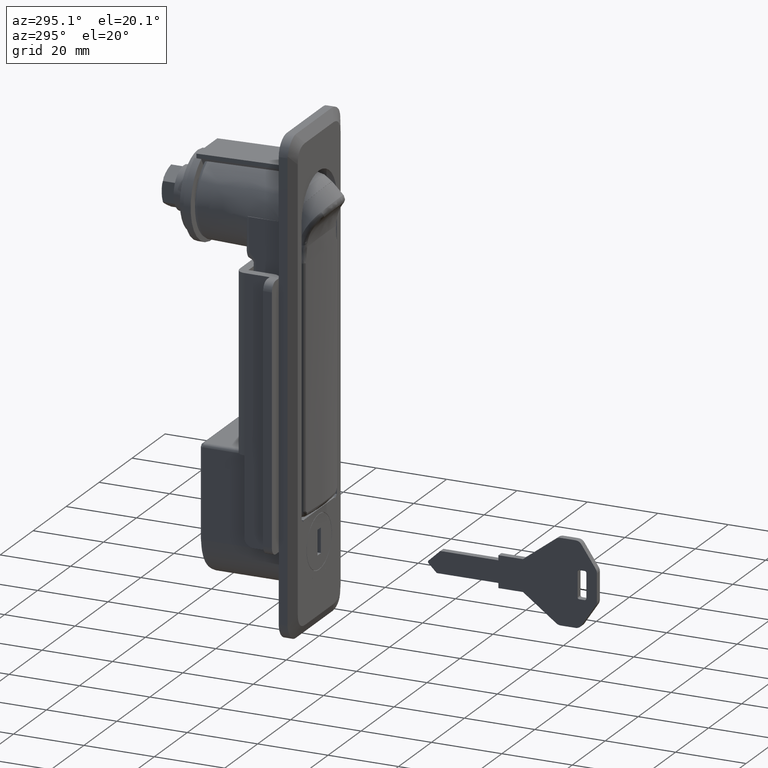
[diagram: clean part render]
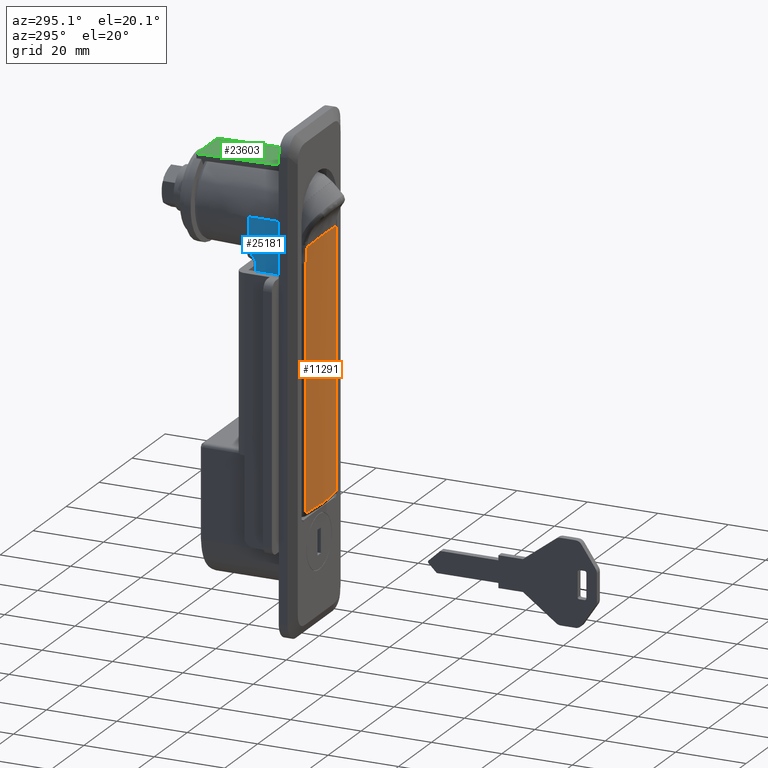
[diagram: same view with three faces highlighted in distinct colors, each labeled with its STEP entity id]
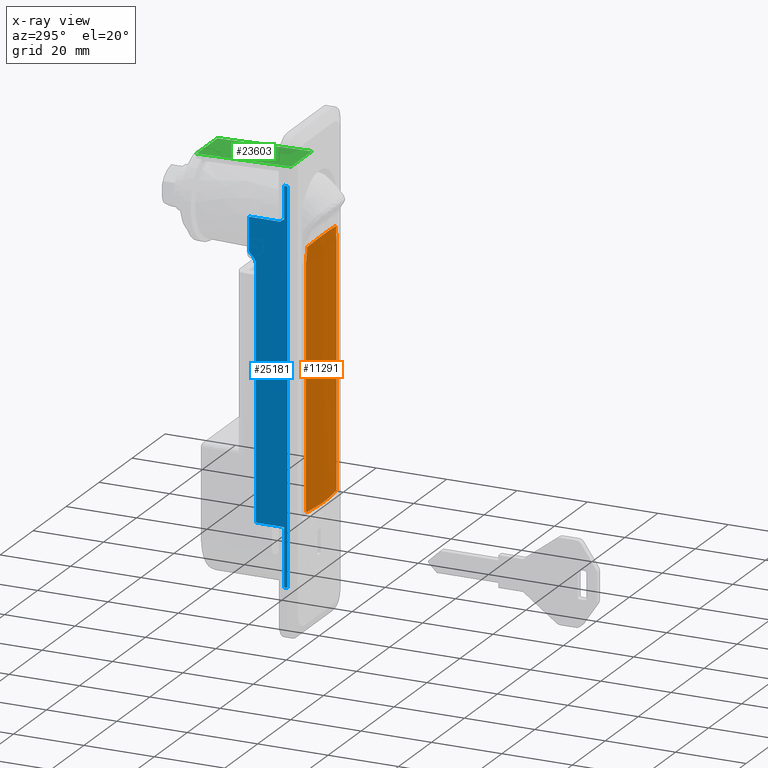
[diagram: x-ray of the same camera — body ghosted, the three highlighted faces saturated]
A machine part, auxiliary view with three faces highlighted in distinct colors.
The next image is the same camera in x-ray (body ghosted, the three faces saturated) — at least one of them is partly hidden behind the body in this view.
Their STEP definitions:

[orange] entity #11291 — the highlighted face is a freeform B-spline surface patch.
#8309=CARTESIAN_POINT('',(-0.593287196272527,9.230769230769191,-79.499797333296385));
#8310=VERTEX_POINT('',#8309);
#8337=CARTESIAN_POINT('',(-0.670864539819239,8.717948717948669,-79.999797333296385));
#8338=VERTEX_POINT('',#8337);
#8349=CARTESIAN_POINT('',(-0.593287196272520,9.230769230769191,-79.499797333296385));
#8350=CARTESIAN_POINT('',(-0.593287196272520,9.230769230769189,-79.533443926202096));
#8351=CARTESIAN_POINT('',(-0.593824289165084,9.227321544824644,-79.566479465484122));
#8352=CARTESIAN_POINT('',(-0.595395049034603,9.217221747952639,-79.615159379093669));
#8353=CARTESIAN_POINT('',(-0.596047100512712,9.213027370892773,-79.631239318154869));
#8354=CARTESIAN_POINT('',(-0.597612461997759,9.202948178609187,-79.663099646056651));
#8355=CARTESIAN_POINT('',(-0.598528233251857,9.197047397824948,-79.678884863008406));
#8356=CARTESIAN_POINT('',(-0.601600149239426,9.177228991317932,-79.724686185330214));
#8357=CARTESIAN_POINT('',(-0.604094566932641,9.161108413612308,-79.753548243355041));
#8358=CARTESIAN_POINT('',(-0.609943642256976,9.123169066111039,-79.807997393731895));
#8359=CARTESIAN_POINT('',(-0.613314971917447,9.101239427799726,-79.833567112454332));
#8360=CARTESIAN_POINT('',(-0.620605796429309,9.053603195493432,-79.879216782380539));
#8361=CARTESIAN_POINT('',(-0.624556211541727,9.027697151018447,-79.899625018430939));
#8362=CARTESIAN_POINT('',(-0.633058290788265,8.971655845646254,-79.935549394884376));
#8363=CARTESIAN_POINT('',(-0.637508954684916,8.942184459536303,-79.950612235691523));
#8364=CARTESIAN_POINT('',(-0.646677806205394,8.881137571213294,-79.974894555783010));
#8365=CARTESIAN_POINT('',(-0.651447635714418,8.849216784739275,-79.984220410915398));
#8366=CARTESIAN_POINT('',(-0.661120003370704,8.784107985001834,-79.996672866951599));
#8367=CARTESIAN_POINT('',(-0.665980695385446,8.751204357139343,-79.999797333296357));
#8368=CARTESIAN_POINT('',(-0.670864539819236,8.717948717948669,-79.999797333296385));
#8369=B_SPLINE_CURVE_WITH_KNOTS('',3,(#8349,#8350,#8351,#8352,#8353,#8354,#8355,#8356,#8357,#8358,#8359,#8360,#8361,#8362,#8363,#8364,#8365,#8366,#8367,#8368),.UNSPECIFIED.,.F.,.U.,(4,2,2,2,2,2,2,2,2,4),(0.0,0.125000000000043,0.187500000000039,0.250000000000035,0.375000000000029,0.500000000000023,0.625000000000017,0.750000000000012,0.875000000000006,1.0),.UNSPECIFIED.);
#8370=EDGE_CURVE('',#8310,#8338,#8369,.T.);
#8394=CARTESIAN_POINT('',(-0.670864539819239,-8.717948717948669,-79.999797333296385));
#8395=VERTEX_POINT('',#8394);
#8407=CARTESIAN_POINT('',(-0.670864539819239,8.717948717948669,-79.999797333296385));
#8408=CARTESIAN_POINT('',(-1.108012554850585,5.742442924498828,-79.999797333296414));
#8409=CARTESIAN_POINT('',(-1.520450271841517,-0.092103118159534,-79.999797333296300));
#8410=CARTESIAN_POINT('',(-1.081498204934079,-5.922767603829385,-79.999797333296314));
#8411=CARTESIAN_POINT('',(-0.670864539819239,-8.717948717948669,-79.999797333296385));
#8412=B_SPLINE_CURVE_WITH_KNOTS('',3,(#8407,#8408,#8409,#8410,#8411),.UNSPECIFIED.,.F.,.U.,(4,1,4),(2.317304E-009,9.022320941125066,17.497853507731492),.UNSPECIFIED.);
#8413=EDGE_CURVE('',#8338,#8395,#8412,.T.);
#8441=CARTESIAN_POINT('',(-0.593287196272527,9.230769230769191,-11.621982736734919));
#8442=VERTEX_POINT('',#8441);
#8462=CARTESIAN_POINT('',(-0.593287196272527,9.230769230769191,-11.621982736734919));
#8463=CARTESIAN_POINT('',(-0.593287196272527,9.230769230769191,-79.499797333296385));
#8464=QUASI_UNIFORM_CURVE('',1,(#8462,#8463),.UNSPECIFIED.,.F.,.U.);
#8465=EDGE_CURVE('',#8442,#8310,#8464,.T.);
#8570=CARTESIAN_POINT('',(-0.593287196272524,-9.230769230769180,-79.499797333296385));
#8571=VERTEX_POINT('',#8570);
#8583=CARTESIAN_POINT('',(-0.670864539819239,-8.717948717948669,-79.999797333296385));
#8584=CARTESIAN_POINT('',(-0.665980144494525,-8.751208108329632,-79.999797333296414));
#8585=CARTESIAN_POINT('',(-0.661143082661120,-8.783950872228644,-79.996672440863293));
#8586=CARTESIAN_POINT('',(-0.651563149818038,-8.848440941503393,-79.984398832801773));
#8587=CARTESIAN_POINT('',(-0.646775480897858,-8.880485732467736,-79.975122260247645));
#8588=CARTESIAN_POINT('',(-0.637539241158125,-8.941984302598456,-79.950722990857386));
#8589=CARTESIAN_POINT('',(-0.633119812092454,-8.971248250747573,-79.935751181536816));
#8590=CARTESIAN_POINT('',(-0.624692084304021,-9.026803578297207,-79.900255946330816));
#8591=CARTESIAN_POINT('',(-0.620653968313786,-9.053287741934458,-79.879486027101748));
#8592=CARTESIAN_POINT('',(-0.613347313188240,-9.101028822854357,-79.833801625797349));
#8593=CARTESIAN_POINT('',(-0.610040742130485,-9.122538080131307,-79.808792533000045));
#8594=CARTESIAN_POINT('',(-0.605632074616259,-9.151136104060617,-79.767913051666923));
#8595=CARTESIAN_POINT('',(-0.604250199207733,-9.160084586490267,-79.753651234919403));
#8596=CARTESIAN_POINT('',(-0.601737734801617,-9.176333950626267,-79.724589253275965));
#8597=CARTESIAN_POINT('',(-0.600599785083706,-9.183682690760108,-79.709733557983370));
#8598=CARTESIAN_POINT('',(-0.597538712134586,-9.203431530072750,-79.664204935959518));
#8599=CARTESIAN_POINT('',(-0.595962080415191,-9.213575696093361,-79.632497429178656));
#8600=CARTESIAN_POINT('',(-0.593824544872079,-9.227320006807236,-79.566717616400510));
#8601=CARTESIAN_POINT('',(-0.593287196272525,-9.230769230769182,-79.533448534454294));
#8602=CARTESIAN_POINT('',(-0.593287196272525,-9.230769230769180,-79.499797333296385));
#8603=B_SPLINE_CURVE_WITH_KNOTS('',3,(#8583,#8584,#8585,#8586,#8587,#8588,#8589,#8590,#8591,#8592,#8593,#8594,#8595,#8596,#8597,#8598,#8599,#8600,#8601,#8602),.UNSPECIFIED.,.F.,.U.,(4,2,2,2,2,2,2,2,2,4),(0.0,0.124999999999986,0.249999999999971,0.374999999999956,0.499999999999942,0.624999999999928,0.687499999999940,0.749999999999952,0.874999999999976,1.0),.UNSPECIFIED.);
#8604=EDGE_CURVE('',#8395,#8571,#8603,.T.);
#8641=CARTESIAN_POINT('',(-0.593880876059456,9.226955446356101,-11.561117204549660));
#8642=VERTEX_POINT('',#8641);
#8663=CARTESIAN_POINT('',(-0.593880876059456,9.226955446356101,-11.561117204549660));
#8664=CARTESIAN_POINT('',(-0.593287426954586,9.230768286728790,-11.591427652377190));
#8665=CARTESIAN_POINT('',(-0.593287196272527,9.230769230769191,-11.621982736734919));
#8666=B_SPLINE_CURVE_WITH_KNOTS('',2,(#8663,#8664,#8665),.UNSPECIFIED.,.F.,.U.,(3,3),(1.276756E-015,0.061048978907316),.UNSPECIFIED.);
#8667=EDGE_CURVE('',#8642,#8442,#8666,.T.);
#8688=CARTESIAN_POINT('',(-0.593287196272527,-9.230769230769170,-11.621982736734340));
#8689=VERTEX_POINT('',#8688);
#8701=CARTESIAN_POINT('',(-0.593287196272524,-9.230769230769180,-79.499797333296385));
#8702=CARTESIAN_POINT('',(-0.593287196272527,-9.230769230769170,-11.621982736734340));
#8703=QUASI_UNIFORM_CURVE('',1,(#8701,#8702),.UNSPECIFIED.,.F.,.U.);
#8704=EDGE_CURVE('',#8571,#8689,#8703,.T.);
#8735=CARTESIAN_POINT('',(-0.673580437330200,8.699435233337031,-7.367387496955450));
#8736=VERTEX_POINT('',#8735);
#8763=CARTESIAN_POINT('',(-0.673580437330200,8.699435233337031,-7.367387496955450));
#8764=CARTESIAN_POINT('',(-0.634903316888660,8.963372509366565,-9.465660829633563));
#8765=CARTESIAN_POINT('',(-0.593880876059456,9.226955446356101,-11.561117204549660));
#8773=(BOUNDED_CURVE()B_SPLINE_CURVE(2,(#8763,#8764,#8765),.UNSPECIFIED.,.F.,.U.)CURVE()GEOMETRIC_REPRESENTATION_ITEM()QUASI_UNIFORM_CURVE()RATIONAL_B_SPLINE_CURVE((1.0,0.999990116983471,1.0))REPRESENTATION_ITEM(''));
#8774=EDGE_CURVE('',#8736,#8642,#8773,.T.);
#8801=CARTESIAN_POINT('',(-0.593880876059459,-9.226955446356081,-11.561117204549101));
#8802=VERTEX_POINT('',#8801);
#8813=CARTESIAN_POINT('',(-0.593287196272527,-9.230769230769170,-11.621982736734340));
#8814=CARTESIAN_POINT('',(-0.593287328174034,-9.230768652364905,-11.591427628502650));
#8815=CARTESIAN_POINT('',(-0.593880876059459,-9.226955446356081,-11.561117204549101));
#8816=B_SPLINE_CURVE_WITH_KNOTS('',2,(#8813,#8814,#8815),.UNSPECIFIED.,.F.,.U.,(3,3),(8.014422E-016,0.061049002771564),.UNSPECIFIED.);
#8817=EDGE_CURVE('',#8689,#8802,#8816,.T.);
#8909=CARTESIAN_POINT('',(-0.673580437330186,-8.699435233337180,-7.367387496955471));
#8910=VERTEX_POINT('',#8909);
#8921=CARTESIAN_POINT('',(-0.593880876059431,-9.226955446356083,-11.561117204549079));
#8922=CARTESIAN_POINT('',(-0.634903316888584,-8.963372509367099,-9.465660829636901));
#8923=CARTESIAN_POINT('',(-0.673580437330186,-8.699435233337180,-7.367387496955471));
#8931=(BOUNDED_CURVE()B_SPLINE_CURVE(2,(#8921,#8922,#8923),.UNSPECIFIED.,.F.,.U.)CURVE()GEOMETRIC_REPRESENTATION_ITEM()QUASI_UNIFORM_CURVE()RATIONAL_B_SPLINE_CURVE((1.0,0.999990116966999,1.0))REPRESENTATION_ITEM(''));
#8932=EDGE_CURVE('',#8802,#8910,#8931,.T.);
#9477=CARTESIAN_POINT('',(-0.673580437330193,-8.699435233337191,-7.367387496955452));
#9478=CARTESIAN_POINT('',(-1.948387502684834,-6.245005E-014,-5.880112587375044));
#9479=CARTESIAN_POINT('',(-0.673580437330200,8.699435233337031,-7.367387496955450));
#9487=(BOUNDED_CURVE()B_SPLINE_CURVE(2,(#9477,#9478,#9479),.UNSPECIFIED.,.F.,.U.)CURVE()GEOMETRIC_REPRESENTATION_ITEM()QUASI_UNIFORM_CURVE()RATIONAL_B_SPLINE_CURVE((1.0,0.989433034427772,1.0))REPRESENTATION_ITEM(''));
#9488=EDGE_CURVE('',#8910,#8736,#9487,.T.);
#11265=CARTESIAN_POINT('',(-0.444814401992882,10.138524556474284,-4.793397471239135));
#11266=CARTESIAN_POINT('',(-0.444814401992882,10.138524556474284,-81.879957329847798));
#11267=CARTESIAN_POINT('',(-2.183276657161329,-0.001788994260023,-4.793397471239135));
#11268=CARTESIAN_POINT('',(-2.183276657161329,-0.001788994260023,-81.879957329847812));
#11269=CARTESIAN_POINT('',(-0.444218404647681,-10.142000348774060,-4.793397471239135));
#11270=CARTESIAN_POINT('',(-0.444218404647681,-10.142000348774060,-81.879957329847812));
#11278=(BOUNDED_SURFACE()B_SPLINE_SURFACE(1,2,((#11265,#11267,#11269),(#11266,#11268,#11270)),.UNSPECIFIED.,.F.,.F.,.U.)B_SPLINE_SURFACE_WITH_KNOTS((2,2),(3,3),(0.0,77.086559858608680),(0.0,20.427425612610890),.UNSPECIFIED.)GEOMETRIC_REPRESENTATION_ITEM()RATIONAL_B_SPLINE_SURFACE(((0.998375636264553,0.982045415023698,0.994384386478732),(0.998375636264553,0.982045415023698,0.994384386478732)))REPRESENTATION_ITEM('')SURFACE());
#11279=ORIENTED_EDGE('',*,*,#8817,.T.);
#11280=ORIENTED_EDGE('',*,*,#8932,.T.);
#11281=ORIENTED_EDGE('',*,*,#9488,.T.);
#11282=ORIENTED_EDGE('',*,*,#8774,.T.);
#11283=ORIENTED_EDGE('',*,*,#8667,.T.);
#11284=ORIENTED_EDGE('',*,*,#8465,.T.);
#11285=ORIENTED_EDGE('',*,*,#8370,.T.);
#11286=ORIENTED_EDGE('',*,*,#8413,.T.);
#11287=ORIENTED_EDGE('',*,*,#8604,.T.);
#11288=ORIENTED_EDGE('',*,*,#8704,.T.);
#11289=EDGE_LOOP('',(#11279,#11280,#11281,#11282,#11283,#11284,#11285,#11286,#11287,#11288));
#11290=FACE_OUTER_BOUND('',#11289,.T.);
#11291=ADVANCED_FACE('',(#11290),#11278,.T.);

[blue] entity #25181 — the highlighted face is a freeform B-spline surface patch.
#17495=CARTESIAN_POINT('',(3.999999999999895,12.699999999999999,-83.500000000000000));
#17496=VERTEX_POINT('',#17495);
#17514=CARTESIAN_POINT('',(12.0,12.699999999999999,-83.500000000000000));
#17515=VERTEX_POINT('',#17514);
#17516=CARTESIAN_POINT('',(12.0,12.699999999999999,-83.500000000000000));
#17517=CARTESIAN_POINT('',(3.999999999999895,12.699999999999999,-83.500000000000000));
#17518=QUASI_UNIFORM_CURVE('',1,(#17516,#17517),.UNSPECIFIED.,.F.,.U.);
#17519=EDGE_CURVE('',#17515,#17496,#17518,.T.);
#17638=CARTESIAN_POINT('',(12.0,12.699999999999999,-65.611039313127293));
#17639=VERTEX_POINT('',#17638);
#17657=CARTESIAN_POINT('',(12.0,12.699999999999999,-65.611039313127293));
#17658=CARTESIAN_POINT('',(12.0,12.699999999999999,-83.500000000000000));
#17659=QUASI_UNIFORM_CURVE('',1,(#17657,#17658),.UNSPECIFIED.,.F.,.U.);
#17660=EDGE_CURVE('',#17639,#17515,#17659,.T.);
#18238=CARTESIAN_POINT('',(12.0,12.699999999999999,-64.215006999271097));
#18239=VERTEX_POINT('',#18238);
#18240=CARTESIAN_POINT('',(12.0,12.699999999999999,-64.215006999271097));
#18241=CARTESIAN_POINT('',(11.999999999999780,12.699999999999999,-64.447794729978639));
#18242=CARTESIAN_POINT('',(12.017000941096139,12.700000000000010,-64.680273525742322));
#18243=CARTESIAN_POINT('',(12.019716545237531,12.699999999999999,-64.971106120292546));
#18244=CARTESIAN_POINT('',(12.019385031996910,12.700000000000010,-65.029282980017740));
#18245=CARTESIAN_POINT('',(12.016941976421130,12.700000000000010,-65.145657744785822));
#18246=CARTESIAN_POINT('',(12.014825902813261,12.699999999999990,-65.203840158557284));
#18247=CARTESIAN_POINT('',(12.007187403684510,12.699999999999990,-65.378308523031691));
#18248=CARTESIAN_POINT('',(12.000000000000030,12.699999999999999,-65.494546459962848));
#18249=CARTESIAN_POINT('',(12.0,12.699999999999999,-65.611039313127293));
#18250=B_SPLINE_CURVE_WITH_KNOTS('',3,(#18240,#18241,#18242,#18243,#18244,#18245,#18246,#18247,#18248,#18249),.UNSPECIFIED.,.F.,.U.,(4,2,2,2,4),(0.0,0.500000000000015,0.625000000000011,0.750000000000007,1.0),.UNSPECIFIED.);
#18251=EDGE_CURVE('',#18239,#17639,#18250,.T.);
#18279=CARTESIAN_POINT('',(12.0,12.699999999999999,-12.965496902349360));
#18280=VERTEX_POINT('',#18279);
#18299=CARTESIAN_POINT('',(12.0,12.699999999999999,-12.965496902349360));
#18300=CARTESIAN_POINT('',(12.0,12.699999999999999,-64.215006999271097));
#18301=QUASI_UNIFORM_CURVE('',1,(#18299,#18300),.UNSPECIFIED.,.F.,.U.);
#18302=EDGE_CURVE('',#18280,#18239,#18301,.T.);
#18345=CARTESIAN_POINT('',(14.0,12.699999999999999,-9.500550988070220));
#18346=VERTEX_POINT('',#18345);
#18347=CARTESIAN_POINT('',(14.0,12.699999999999999,-9.500550988070220));
#18348=CARTESIAN_POINT('',(13.969840089064091,12.700000000000010,-9.530725674284849));
#18349=CARTESIAN_POINT('',(13.939385235763030,12.699999999999999,-9.561195278964279));
#18350=CARTESIAN_POINT('',(13.878785051164311,12.699999999999999,-9.621918992891539));
#18351=CARTESIAN_POINT('',(13.787958459379061,12.699999999999990,-9.713071850508870));
#18352=CARTESIAN_POINT('',(13.577061640802039,12.699999999999999,-9.926704143396558));
#18353=CARTESIAN_POINT('',(13.399826768679871,12.699999999999999,-10.113044509625070));
#18354=CARTESIAN_POINT('',(13.169783154511119,12.699999999999999,-10.367223468802900));
#18355=CARTESIAN_POINT('',(13.057891128191100,12.699999999999990,-10.497170957207890));
#18356=CARTESIAN_POINT('',(12.897141532544230,12.699999999999999,-10.698565114436210));
#18357=CARTESIAN_POINT('',(12.844663078513920,12.699999999999999,-10.766886792518751));
#18358=CARTESIAN_POINT('',(12.743051477081680,12.699999999999990,-10.905296793872530));
#18359=CARTESIAN_POINT('',(12.693884981603180,12.699999999999999,-10.975417839613730));
#18360=CARTESIAN_POINT('',(12.551922686052441,12.699999999999999,-11.188875163486459));
#18361=CARTESIAN_POINT('',(12.464647855976160,12.699999999999990,-11.335296564021640));
#18362=CARTESIAN_POINT('',(12.308312208260899,12.699999999999999,-11.638317369658539));
#18363=CARTESIAN_POINT('',(12.239214583526820,12.699999999999990,-11.794896206926380));
#18364=CARTESIAN_POINT('',(12.123606508889869,12.699999999999999,-12.120675612635701));
#18365=CARTESIAN_POINT('',(12.078486811021360,12.699999999999990,-12.286101634003920));
#18366=CARTESIAN_POINT('',(12.016740548102650,12.699999999999990,-12.621778359709250));
#18367=CARTESIAN_POINT('',(12.0,12.699999999999999,-12.792141994044320));
#18368=CARTESIAN_POINT('',(12.0,12.699999999999999,-12.965496902349360));
#18369=B_SPLINE_CURVE_WITH_KNOTS('',3,(#18347,#18348,#18349,#18350,#18351,#18352,#18353,#18354,#18355,#18356,#18357,#18358,#18359,#18360,#18361,#18362,#18363,#18364,#18365,#18366,#18367,#18368),.UNSPECIFIED.,.F.,.U.,(4,2,1,1,2,2,2,2,2,2,2,4),(0.0,0.031250000000000,0.062500000000000,0.125000000000001,0.250000000000002,0.375000000000002,0.437500000000002,0.500000000000002,0.625000000000002,0.750000000000001,0.875000000000001,1.0),.UNSPECIFIED.);
#18370=EDGE_CURVE('',#18346,#18280,#18369,.T.);
#20417=CARTESIAN_POINT('',(3.999999999999915,12.699999999999999,0.749208505190909));
#20418=VERTEX_POINT('',#20417);
#20458=CARTESIAN_POINT('',(3.999999999999895,12.699999999999999,10.0));
#20459=VERTEX_POINT('',#20458);
#20460=CARTESIAN_POINT('',(3.999999999999895,12.699999999999999,10.0));
#20461=CARTESIAN_POINT('',(3.999999999999915,12.699999999999999,0.749208505190909));
#20462=QUASI_UNIFORM_CURVE('',1,(#20460,#20461),.UNSPECIFIED.,.F.,.U.);
#20463=EDGE_CURVE('',#20459,#20418,#20462,.T.);
#20935=CARTESIAN_POINT('',(3.999999999999895,12.699999999999999,-100.0));
#20936=VERTEX_POINT('',#20935);
#20989=CARTESIAN_POINT('',(3.999999999999895,12.699999999999999,-83.500000000000000));
#20990=CARTESIAN_POINT('',(3.999999999999895,12.699999999999999,-100.0));
#20991=QUASI_UNIFORM_CURVE('',1,(#20989,#20990),.UNSPECIFIED.,.F.,.U.);
#20992=EDGE_CURVE('',#17496,#20936,#20991,.T.);
#21030=CARTESIAN_POINT('',(14.0,12.699999999999999,0.0));
#21031=VERTEX_POINT('',#21030);
#21032=CARTESIAN_POINT('',(14.0,12.699999999999999,0.0));
#21033=CARTESIAN_POINT('',(14.0,12.699999999999999,-9.500550988070220));
#21034=QUASI_UNIFORM_CURVE('',1,(#21032,#21033),.UNSPECIFIED.,.F.,.U.);
#21035=EDGE_CURVE('',#21031,#18346,#21034,.T.);
#25071=CARTESIAN_POINT('',(4.999999999999920,12.699999999999999,6.008451E-016));
#25072=VERTEX_POINT('',#25071);
#25079=CARTESIAN_POINT('',(4.999999999999920,12.699999999999999,6.008451E-016));
#25080=CARTESIAN_POINT('',(14.0,12.699999999999999,0.0));
#25081=QUASI_UNIFORM_CURVE('',1,(#25079,#25080),.UNSPECIFIED.,.F.,.U.);
#25082=EDGE_CURVE('',#25072,#21031,#25081,.T.);
#25109=CARTESIAN_POINT('',(2.999999999999890,12.699999999999999,10.0));
#25110=VERTEX_POINT('',#25109);
#25111=CARTESIAN_POINT('',(2.999999999999890,12.699999999999999,10.0));
#25112=CARTESIAN_POINT('',(3.999999999999895,12.699999999999999,10.0));
#25113=QUASI_UNIFORM_CURVE('',1,(#25111,#25112),.UNSPECIFIED.,.F.,.U.);
#25114=EDGE_CURVE('',#25110,#20459,#25113,.T.);
#25131=CARTESIAN_POINT('',(2.450550021320018,12.699999999999999,-105.494499786798700));
#25132=CARTESIAN_POINT('',(2.450550021320018,12.699999999999999,15.494502737228579));
#25133=CARTESIAN_POINT('',(14.549450273722860,12.699999999999999,-105.494499786798700));
#25134=CARTESIAN_POINT('',(14.549450273722860,12.699999999999999,15.494502737228579));
#25135=B_SPLINE_SURFACE_WITH_KNOTS('',1,1,((#25131,#25133),(#25132,#25134)),.UNSPECIFIED.,.F.,.F.,.U.,(2,2),(2,2),(0.0,120.989002524027200),(0.0,12.098900252402849),.UNSPECIFIED.);
#25136=ORIENTED_EDGE('',*,*,#17519,.T.);
#25137=ORIENTED_EDGE('',*,*,#20992,.T.);
#25138=CARTESIAN_POINT('',(2.999999999999890,12.699999999999999,-100.0));
#25139=VERTEX_POINT('',#25138);
#25140=CARTESIAN_POINT('',(2.999999999999890,12.699999999999999,-100.0));
#25141=CARTESIAN_POINT('',(3.999999999999895,12.699999999999999,-100.0));
#25142=QUASI_UNIFORM_CURVE('',1,(#25140,#25141),.UNSPECIFIED.,.F.,.U.);
#25143=EDGE_CURVE('',#25139,#20936,#25142,.T.);
#25144=ORIENTED_EDGE('',*,*,#25143,.F.);
#25145=CARTESIAN_POINT('',(2.999999999999890,12.699999999999999,-100.0));
#25146=CARTESIAN_POINT('',(2.999999999999890,12.699999999999999,10.0));
#25147=QUASI_UNIFORM_CURVE('',1,(#25145,#25146),.UNSPECIFIED.,.F.,.U.);
#25148=EDGE_CURVE('',#25139,#25110,#25147,.T.);
#25149=ORIENTED_EDGE('',*,*,#25148,.T.);
#25150=ORIENTED_EDGE('',*,*,#25114,.T.);
#25151=ORIENTED_EDGE('',*,*,#20463,.T.);
#25152=CARTESIAN_POINT('',(3.999999999999915,12.699999999999999,0.749208505190909));
#25153=CARTESIAN_POINT('',(4.102090210267470,12.699999999999999,0.710931862833586));
#25154=CARTESIAN_POINT('',(4.203152838912592,12.699999999999990,0.670214853895101));
#25155=CARTESIAN_POINT('',(4.401993368426815,12.699999999999990,0.580980054340235));
#25156=CARTESIAN_POINT('',(4.499858481016479,12.699999999999999,0.532584495056701));
#25157=CARTESIAN_POINT('',(4.640500300201304,12.699999999999990,0.449930813113395));
#25158=CARTESIAN_POINT('',(4.686384688705428,12.699999999999990,0.420658593384117));
#25159=CARTESIAN_POINT('',(4.775012078274853,12.699999999999999,0.356687325112173));
#25160=CARTESIAN_POINT('',(4.817400392054838,12.699999999999999,0.322328885585104));
#25161=CARTESIAN_POINT('',(4.875695178894694,12.699999999999999,0.264743574288971));
#25162=CARTESIAN_POINT('',(4.894208279061824,12.699999999999999,0.244510781307249));
#25163=CARTESIAN_POINT('',(4.927969953541010,12.699999999999999,0.202109314315358));
#25164=CARTESIAN_POINT('',(4.943320959049096,12.699999999999999,0.179863429589531));
#25165=CARTESIAN_POINT('',(4.969728420514831,12.699999999999990,0.132437707565196));
#25166=CARTESIAN_POINT('',(4.980863518243415,12.699999999999990,0.106845140906051));
#25167=CARTESIAN_POINT('',(4.995911312582659,12.699999999999999,0.054557505671267));
#25168=CARTESIAN_POINT('',(4.999999999999891,12.699999999999999,0.027702181074738));
#25169=CARTESIAN_POINT('',(4.999999999999920,12.699999999999999,6.008451E-016));
#25170=B_SPLINE_CURVE_WITH_KNOTS('',3,(#25152,#25153,#25154,#25155,#25156,#25157,#25158,#25159,#25160,#25161,#25162,#25163,#25164,#25165,#25166,#25167,#25168,#25169),.UNSPECIFIED.,.F.,.U.,(4,2,2,2,2,2,2,2,4),(0.0,0.249999999999998,0.499999999999997,0.624999999999997,0.749999999999997,0.812499999999998,0.874999999999998,0.937499999999999,1.0),.UNSPECIFIED.);
#25171=EDGE_CURVE('',#20418,#25072,#25170,.T.);
#25172=ORIENTED_EDGE('',*,*,#25171,.T.);
#25173=ORIENTED_EDGE('',*,*,#25082,.T.);
#25174=ORIENTED_EDGE('',*,*,#21035,.T.);
#25175=ORIENTED_EDGE('',*,*,#18370,.T.);
#25176=ORIENTED_EDGE('',*,*,#18302,.T.);
#25177=ORIENTED_EDGE('',*,*,#18251,.T.);
#25178=ORIENTED_EDGE('',*,*,#17660,.T.);
#25179=EDGE_LOOP('',(#25136,#25137,#25144,#25149,#25150,#25151,#25172,#25173,#25174,#25175,#25176,#25177,#25178));
#25180=FACE_OUTER_BOUND('',#25179,.T.);
#25181=ADVANCED_FACE('',(#25180),#25135,.T.);

[green] entity #23603 — the highlighted face is a freeform B-spline surface patch.
#23505=CARTESIAN_POINT('',(31.899999999999000,-6.347000000000000,12.406054493585421));
#23506=VERTEX_POINT('',#23505);
#23507=CARTESIAN_POINT('',(4.999999999999011,-6.347000000000000,13.0));
#23508=VERTEX_POINT('',#23507);
#23509=CARTESIAN_POINT('',(31.899999999999000,-6.347000000000000,12.406054493585421));
#23510=CARTESIAN_POINT('',(4.999999999999011,-6.347000000000000,13.0));
#23511=QUASI_UNIFORM_CURVE('',1,(#23509,#23510),.UNSPECIFIED.,.F.,.U.);
#23512=EDGE_CURVE('',#23506,#23508,#23511,.T.);
#23562=CARTESIAN_POINT('',(4.999999999999011,6.350000000000000,13.0));
#23563=VERTEX_POINT('',#23562);
#23569=CARTESIAN_POINT('',(31.899999999999000,6.350000000000000,12.406054493585421));
#23570=VERTEX_POINT('',#23569);
#23571=CARTESIAN_POINT('',(31.899999999999000,6.350000000000000,12.406054493585421));
#23572=CARTESIAN_POINT('',(4.999999999999011,6.350000000000000,13.0));
#23573=QUASI_UNIFORM_CURVE('',1,(#23571,#23572),.UNSPECIFIED.,.F.,.U.);
#23574=EDGE_CURVE('',#23570,#23563,#23573,.T.);
#23584=CARTESIAN_POINT('',(33.243654695343643,-6.981215244581104,12.376386922266731));
#23585=CARTESIAN_POINT('',(33.243654695343643,6.984215471621154,12.376386922266731));
#23586=CARTESIAN_POINT('',(3.656344342635416,-6.981215244581104,13.029667592559839));
#23587=CARTESIAN_POINT('',(3.656344342635416,6.984215471621154,13.029667592559839));
#23588=B_SPLINE_SURFACE_WITH_KNOTS('',1,1,((#23584,#23586),(#23585,#23587)),.UNSPECIFIED.,.F.,.F.,.U.,(2,2),(2,2),(0.0,13.965430716202260),(0.0,29.594521613664469),.UNSPECIFIED.);
#23589=CARTESIAN_POINT('',(31.899999999999000,-6.347000000000000,12.406054493585421));
#23590=CARTESIAN_POINT('',(31.899999999999000,6.350000000000000,12.406054493585421));
#23591=QUASI_UNIFORM_CURVE('',1,(#23589,#23590),.UNSPECIFIED.,.F.,.U.);
#23592=EDGE_CURVE('',#23506,#23570,#23591,.T.);
#23593=ORIENTED_EDGE('',*,*,#23592,.T.);
#23594=ORIENTED_EDGE('',*,*,#23574,.T.);
#23595=CARTESIAN_POINT('',(4.999999999999011,-6.347000000000000,13.0));
#23596=CARTESIAN_POINT('',(4.999999999999011,6.350000000000000,13.0));
#23597=QUASI_UNIFORM_CURVE('',1,(#23595,#23596),.UNSPECIFIED.,.F.,.U.);
#23598=EDGE_CURVE('',#23508,#23563,#23597,.T.);
#23599=ORIENTED_EDGE('',*,*,#23598,.F.);
#23600=ORIENTED_EDGE('',*,*,#23512,.F.);
#23601=EDGE_LOOP('',(#23593,#23594,#23599,#23600));
#23602=FACE_OUTER_BOUND('',#23601,.T.);
#23603=ADVANCED_FACE('',(#23602),#23588,.T.);